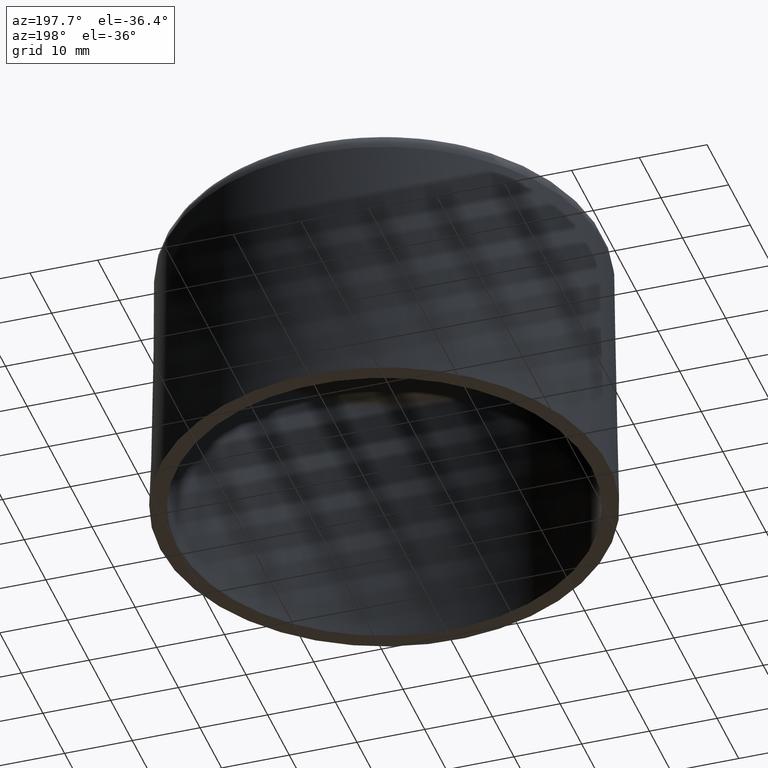
[diagram: clean part render]
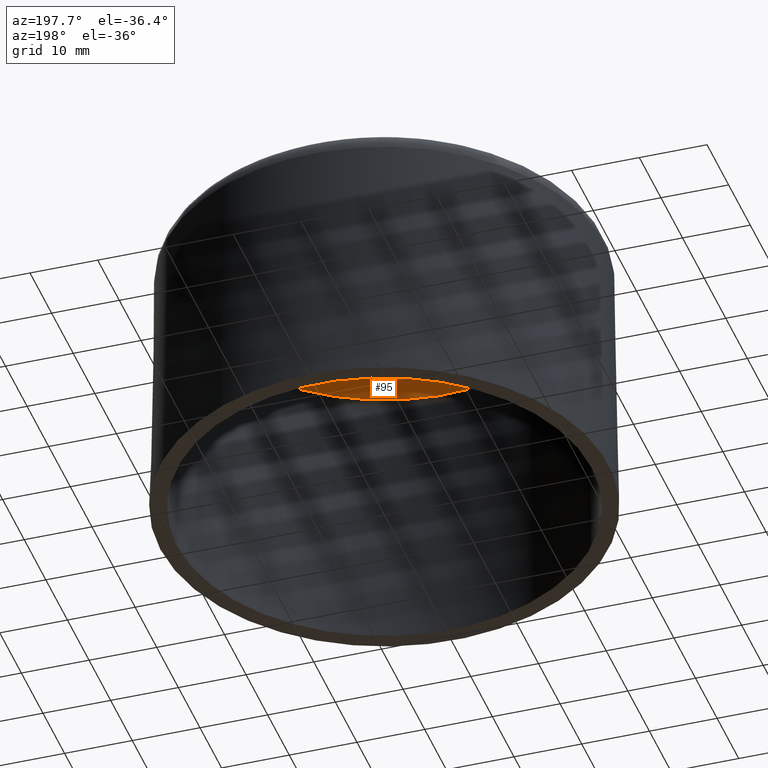
[diagram: same view with one face highlighted and labeled with its STEP entity id]
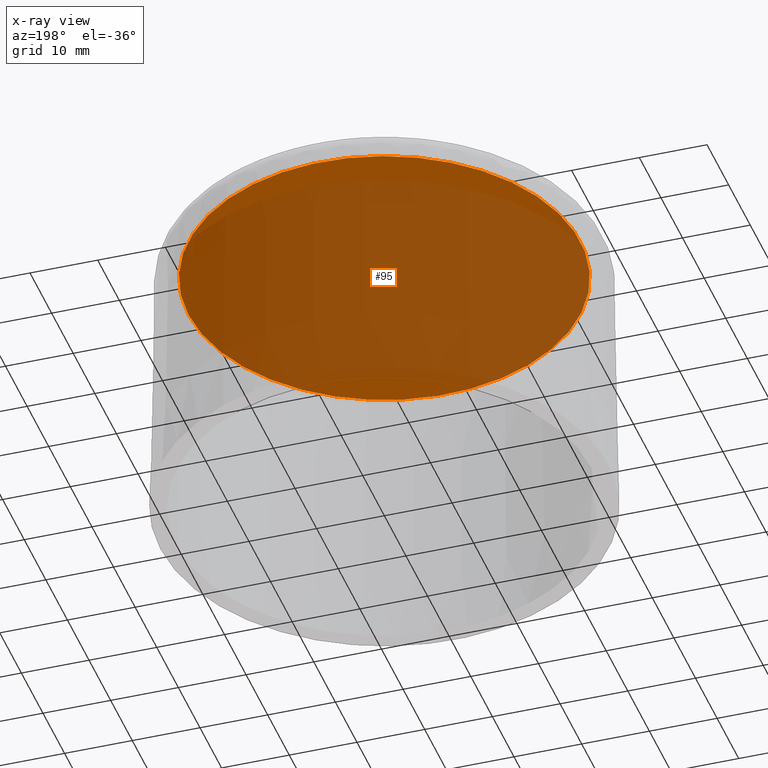
[diagram: x-ray of the same camera — body ghosted, the highlighted face saturated]
A machine part, auxiliary view. The second image highlights one B-rep face of the part: STEP entity #95.
The next image is the same camera in x-ray: the body ghosted, the highlighted face saturated — about 87% of this face is hidden behind the body in this view.
In plain terms, the highlighted planar face has unit normal (-0, 0, 1).
Its self-contained STEP definition (entity closure, byte-faithful):
#95 = ADVANCED_FACE( '', ( #198 ), #199, .F. );
#198 = FACE_OUTER_BOUND( '', #353, .T. );
#199 = PLANE( '', #354 );
#353 = EDGE_LOOP( '', ( #670 ) );
#354 = AXIS2_PLACEMENT_3D( '', #671, #672, #673 );
#670 = ORIENTED_EDGE( '', *, *, #1116, .F. );
#671 = CARTESIAN_POINT( '', ( -2.44921270764475E-015, 0.000000000000000, 40.0000000000000 ) );
#672 = DIRECTION( '', ( -6.12303176911189E-017, 0.000000000000000, 1.00000000000000 ) );
#673 = DIRECTION( '', ( 1.00000000000000, 0.000000000000000, 6.12303176911189E-017 ) );
#1116 = EDGE_CURVE( '', #1329, #1329, #1330, .T. );
#1329 = VERTEX_POINT( '', #1882 );
#1330 = CIRCLE( '', #1883, 28.9182014383200 );
#1882 = CARTESIAN_POINT( '', ( 28.9182014383200, 0.000000000000000, 40.0000000000000 ) );
#1883 = AXIS2_PLACEMENT_3D( '', #2117, #2118, #2119 );
#2117 = CARTESIAN_POINT( '', ( -2.44921270764475E-015, 0.000000000000000, 40.0000000000000 ) );
#2118 = DIRECTION( '', ( -6.12303176911189E-017, 0.000000000000000, 1.00000000000000 ) );
#2119 = DIRECTION( '', ( 1.00000000000000, 0.000000000000000, 6.12303176911189E-017 ) );